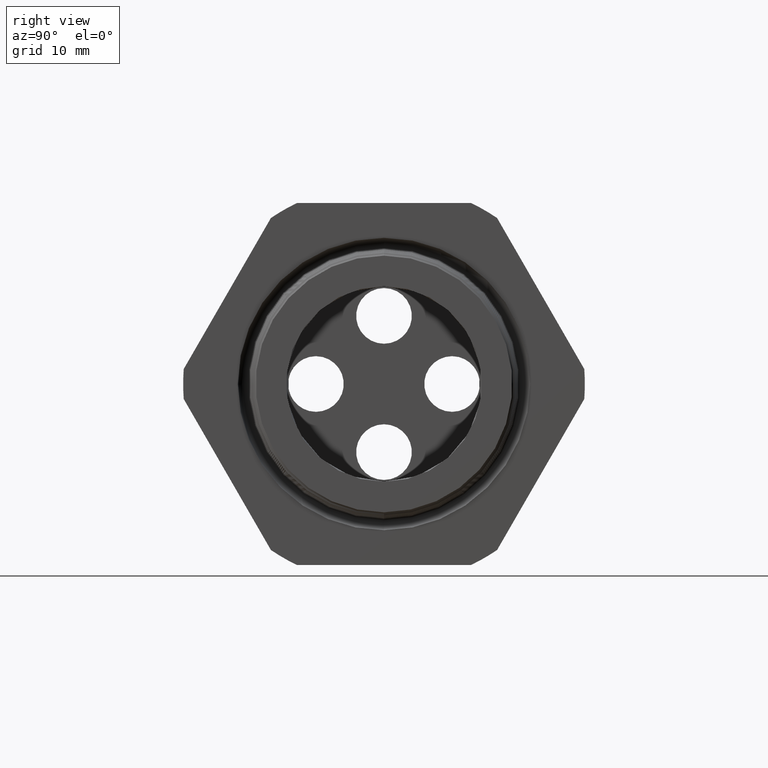
[diagram: clean part render]
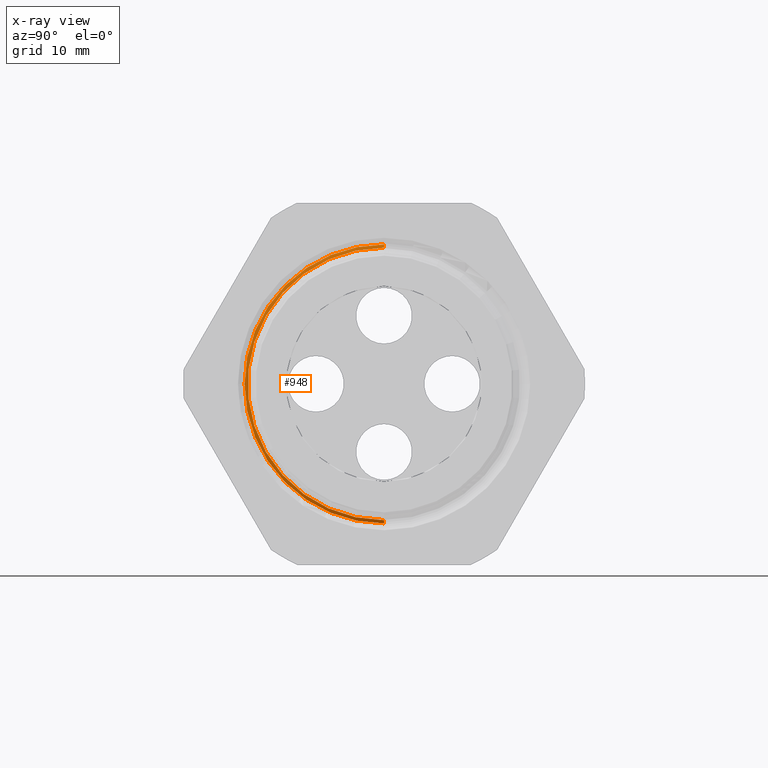
[diagram: x-ray — body ghosted, one internal face saturated and labeled with its STEP entity id]
A machine part, right view, then the same camera in x-ray: the body is ghosted and one INTERNAL B-rep face — a face not visible from any outside direction — is saturated and labeled: STEP entity #948.
In plain terms, the highlighted conical surface has half-angle 62 deg.
Its self-contained STEP definition (entity closure, byte-faithful):
#92 = VERTEX_POINT ( 'NONE', #1513 ) ;
#97 = EDGE_CURVE ( 'NONE', #159, #92, #1573, .T. ) ;
#136 = EDGE_CURVE ( 'NONE', #184, #148, #1624, .T. ) ;
#148 = VERTEX_POINT ( 'NONE', #1653 ) ;
#159 = VERTEX_POINT ( 'NONE', #1694 ) ;
#184 = VERTEX_POINT ( 'NONE', #1720 ) ;
#304 = EDGE_CURVE ( 'NONE', #92, #148, #1963, .T. ) ;
#877 = ORIENTED_EDGE ( 'NONE', *, *, #304, .T. ) ;
#948 = ADVANCED_FACE ( 'NONE', ( #3016 ), #3015, .T. ) ;
#949 = EDGE_LOOP ( 'NONE', ( #950, #951, #953, #877 ) ) ;
#950 = ORIENTED_EDGE ( 'NONE', *, *, #136, .F. ) ;
#951 = ORIENTED_EDGE ( 'NONE', *, *, #952, .F. ) ;
#952 = EDGE_CURVE ( 'NONE', #159, #184, #3010, .T. ) ;
#953 = ORIENTED_EDGE ( 'NONE', *, *, #97, .T. ) ;
#1513 = CARTESIAN_POINT ( 'NONE',  ( -0.6129365566449482800, 0.0000000000000000000, 0.5011232403534451300 ) ) ;
#1570 = DIRECTION ( 'NONE',  ( -0.4694715627859013000, 0.0000000000000000000, 0.8829475928589214400 ) ) ;
#1571 = VECTOR ( 'NONE', #1570, 39.37007874015748100 ) ;
#1572 = CARTESIAN_POINT ( 'NONE',  ( -0.6203149606299212000, 0.0000000000000000000, 0.5150000000000000100 ) ) ;
#1573 = LINE ( 'NONE', #1572, #1571 ) ;
#1621 = DIRECTION ( 'NONE',  ( -0.4694715627859013000, 1.081298943409538600E-016, -0.8829475928589214400 ) ) ;
#1622 = VECTOR ( 'NONE', #1621, 39.37007874015748100 ) ;
#1623 = CARTESIAN_POINT ( 'NONE',  ( -0.6203149606299212000, 6.306931015608869800E-017, -0.5150000000000000100 ) ) ;
#1624 = LINE ( 'NONE', #1623, #1622 ) ;
#1653 = CARTESIAN_POINT ( 'NONE',  ( -0.6129365566449482800, 6.140457212240825100E-017, -0.5011232403534451300 ) ) ;
#1694 = CARTESIAN_POINT ( 'NONE',  ( -0.6067624839723554400, 0.0000000000000000000, 0.4895114984791283900 ) ) ;
#1720 = CARTESIAN_POINT ( 'NONE',  ( -0.6067624839723554400, 6.065888310177427100E-017, -0.4895114984791283900 ) ) ;
#1959 = DIRECTION ( 'NONE',  ( 0.0000000000000000000, 0.0000000000000000000, 1.000000000000000000 ) ) ;
#1960 = DIRECTION ( 'NONE',  ( 1.000000000000000000, 0.0000000000000000000, 0.0000000000000000000 ) ) ;
#1961 = CARTESIAN_POINT ( 'NONE',  ( -0.6129365566449482800, 0.0000000000000000000, 0.0000000000000000000 ) ) ;
#1962 = AXIS2_PLACEMENT_3D ( 'NONE', #1961, #1960, #1959 ) ;
#1963 = CIRCLE ( 'NONE', #1962, 0.5011232403534451300 ) ;
#3007 = DIRECTION ( 'NONE',  ( 0.0000000000000000000, 0.0000000000000000000, -1.000000000000000000 ) ) ;
#3008 = DIRECTION ( 'NONE',  ( 1.000000000000000000, 0.0000000000000000000, 0.0000000000000000000 ) ) ;
#3009 = AXIS2_PLACEMENT_3D ( 'NONE', #3014, #3008, #3007 ) ;
#3010 = CIRCLE ( 'NONE', #3009, 0.4895114984791283900 ) ;
#3011 = DIRECTION ( 'NONE',  ( 0.0000000000000000000, 0.0000000000000000000, 1.000000000000000000 ) ) ;
#3012 = DIRECTION ( 'NONE',  ( -1.000000000000000000, 0.0000000000000000000, 0.0000000000000000000 ) ) ;
#3013 = AXIS2_PLACEMENT_3D ( 'NONE', #3021, #3012, #3011 ) ;
#3014 = CARTESIAN_POINT ( 'NONE',  ( -0.6067624839723554400, 0.0000000000000000000, 0.0000000000000000000 ) ) ;
#3015 = CONICAL_SURFACE ( 'NONE', #3013, 0.5150000000000000100, 1.082104136236472500 ) ;
#3016 = FACE_OUTER_BOUND ( 'NONE', #949, .T. ) ;
#3021 = CARTESIAN_POINT ( 'NONE',  ( -0.6203149606299212000, 0.0000000000000000000, 0.0000000000000000000 ) ) ;